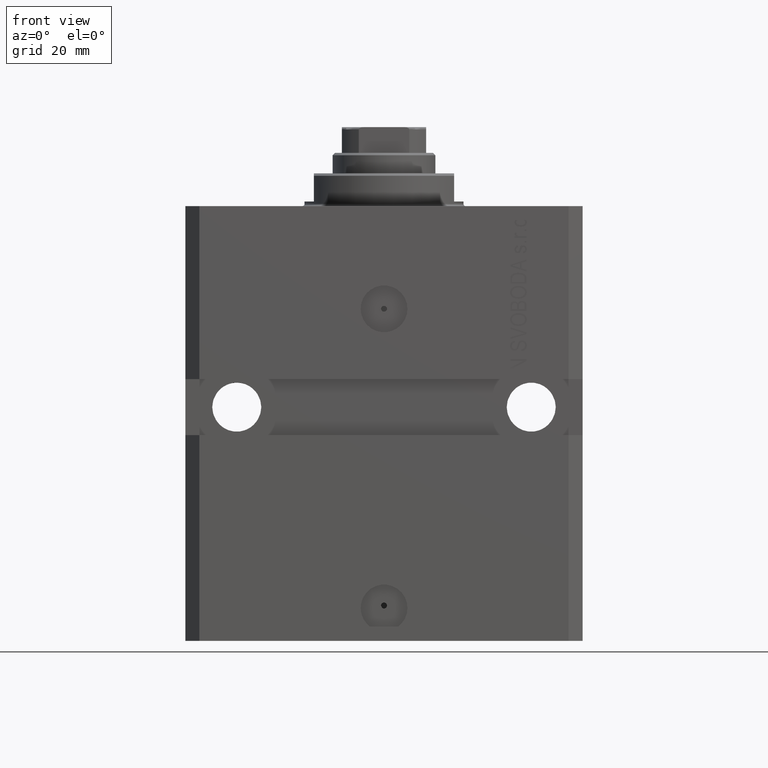
[diagram: clean part render]
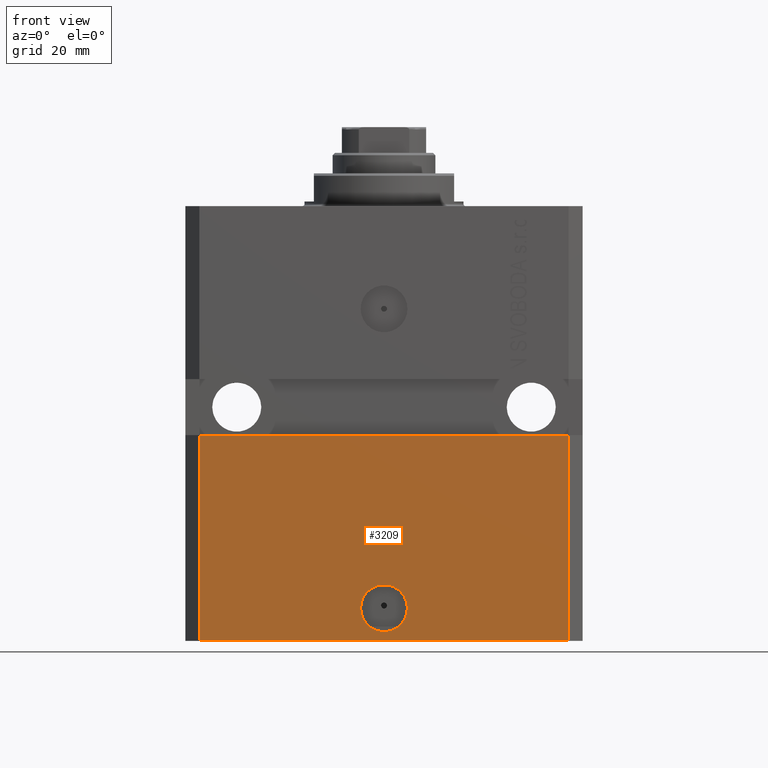
[diagram: same view with one face highlighted and labeled with its STEP entity id]
A machine part, front view. The second image highlights one B-rep face of the part: STEP entity #3209.
In plain terms, the highlighted planar face has unit normal (0, -1, 0).
Its self-contained STEP definition (entity closure, byte-faithful):
#1525 = CARTESIAN_POINT ( 'NONE',  ( 5.000000000000006217, -31.50000000000000000, -86.00000000000000000 ) ) ;
#1688 = VERTEX_POINT ( 'NONE', #1525 ) ;
#3206 = CARTESIAN_POINT ( 'NONE',  ( -5.000000000000006217, -31.50000000000000000, -86.00000000000000000 ) ) ;
#3209 = ADVANCED_FACE ( 'NONE', ( #23086, #33687 ), #38952, .T. ) ;
#5940 = DIRECTION ( 'NONE',  ( 0.000000000000000000, -1.000000000000000000, 0.000000000000000000 ) ) ;
#7814 = VECTOR ( 'NONE', #12837, 1000.000000000000000 ) ;
#8985 = CARTESIAN_POINT ( 'NONE',  ( -39.50000000000000711, -31.50000000000000000, -93.00000000000000000 ) ) ;
#9535 = CARTESIAN_POINT ( 'NONE',  ( -39.50000000000000711, -31.50000000000000000, -93.00000000000000000 ) ) ;
#9575 = VERTEX_POINT ( 'NONE', #3206 ) ;
#11585 = CARTESIAN_POINT ( 'NONE',  ( -42.50000000000000000, -31.50000000000000711, -48.99999999999999289 ) ) ;
#12465 = DIRECTION ( 'NONE',  ( 0.000000000000000000, -0.000000000000000000, -1.000000000000000000 ) ) ;
#12837 = DIRECTION ( 'NONE',  ( 0.000000000000000000, 0.000000000000000000, 1.000000000000000000 ) ) ;
#16223 = LINE ( 'NONE', #8985, #7814 ) ;
#16327 = CARTESIAN_POINT ( 'NONE',  ( -39.50000000000000711, -31.50000000000000000, -93.00000000000000000 ) ) ;
#16619 = VERTEX_POINT ( 'NONE', #43426 ) ;
#17313 = AXIS2_PLACEMENT_3D ( 'NONE', #29796, #26417, #44914 ) ;
#17454 = CARTESIAN_POINT ( 'NONE',  ( 39.50000000000000711, -31.50000000000000000, -93.00000000000000000 ) ) ;
#17523 = CARTESIAN_POINT ( 'NONE',  ( 0.000000000000000000, -31.50000000000000000, -86.00000000000000000 ) ) ;
#17578 = EDGE_CURVE ( 'NONE', #16619, #46460, #42957, .T. ) ;
#19184 = EDGE_CURVE ( 'NONE', #45576, #46460, #29907, .T. ) ;
#21100 = DIRECTION ( 'NONE',  ( 1.000000000000000000, 0.000000000000000000, 0.000000000000000000 ) ) ;
#21516 = VECTOR ( 'NONE', #26765, 1000.000000000000000 ) ;
#21611 = DIRECTION ( 'NONE',  ( 1.176083712526788232E-16, -1.000000000000000000, 0.000000000000000000 ) ) ;
#21863 = ORIENTED_EDGE ( 'NONE', *, *, #27206, .F. ) ;
#22352 = EDGE_CURVE ( 'NONE', #9575, #1688, #41616, .T. ) ;
#22610 = ORIENTED_EDGE ( 'NONE', *, *, #19184, .F. ) ;
#23086 = FACE_BOUND ( 'NONE', #28149, .T. ) ;
#24765 = ORIENTED_EDGE ( 'NONE', *, *, #44716, .F. ) ;
#25404 = DIRECTION ( 'NONE',  ( 0.000000000000000000, 0.000000000000000000, 1.000000000000000000 ) ) ;
#26417 = DIRECTION ( 'NONE',  ( 1.176083712526788232E-16, -1.000000000000000000, 0.000000000000000000 ) ) ;
#26765 = DIRECTION ( 'NONE',  ( 1.000000000000000000, 1.632680918566406300E-16, 0.000000000000000000 ) ) ;
#27206 = EDGE_CURVE ( 'NONE', #34279, #45576, #16223, .T. ) ;
#27878 = LINE ( 'NONE', #9535, #44841 ) ;
#28149 = EDGE_LOOP ( 'NONE', ( #24765, #32555 ) ) ;
#29796 = CARTESIAN_POINT ( 'NONE',  ( 0.000000000000000000, -31.50000000000000000, -86.00000000000000000 ) ) ;
#29907 = LINE ( 'NONE', #11585, #21516 ) ;
#31730 = EDGE_CURVE ( 'NONE', #34279, #16619, #27878, .T. ) ;
#32555 = ORIENTED_EDGE ( 'NONE', *, *, #22352, .F. ) ;
#33687 = FACE_OUTER_BOUND ( 'NONE', #39438, .T. ) ;
#34279 = VERTEX_POINT ( 'NONE', #38934 ) ;
#35303 = VECTOR ( 'NONE', #25404, 1000.000000000000000 ) ;
#36064 = DIRECTION ( 'NONE',  ( 1.000000000000000000, 0.000000000000000000, 0.000000000000000000 ) ) ;
#37151 = ORIENTED_EDGE ( 'NONE', *, *, #17578, .T. ) ;
#38934 = CARTESIAN_POINT ( 'NONE',  ( -39.50000000000000711, -31.50000000000000000, -93.00000000000000000 ) ) ;
#38952 = PLANE ( 'NONE',  #43055 ) ;
#39438 = EDGE_LOOP ( 'NONE', ( #22610, #21863, #42124, #37151 ) ) ;
#41616 = CIRCLE ( 'NONE', #44683, 5.000000000000006217 ) ;
#42124 = ORIENTED_EDGE ( 'NONE', *, *, #31730, .T. ) ;
#42957 = LINE ( 'NONE', #17454, #35303 ) ;
#43055 = AXIS2_PLACEMENT_3D ( 'NONE', #16327, #5940, #12465 ) ;
#43426 = CARTESIAN_POINT ( 'NONE',  ( 39.50000000000000711, -31.50000000000000000, -93.00000000000000000 ) ) ;
#43743 = CARTESIAN_POINT ( 'NONE',  ( -39.50000000000000000, -31.50000000000000711, -48.99999999999999289 ) ) ;
#44683 = AXIS2_PLACEMENT_3D ( 'NONE', #17523, #21611, #36064 ) ;
#44716 = EDGE_CURVE ( 'NONE', #1688, #9575, #46536, .T. ) ;
#44841 = VECTOR ( 'NONE', #21100, 1000.000000000000000 ) ;
#44914 = DIRECTION ( 'NONE',  ( 1.000000000000000000, 0.000000000000000000, 0.000000000000000000 ) ) ;
#45576 = VERTEX_POINT ( 'NONE', #43743 ) ;
#46460 = VERTEX_POINT ( 'NONE', #46954 ) ;
#46536 = CIRCLE ( 'NONE', #17313, 5.000000000000006217 ) ;
#46954 = CARTESIAN_POINT ( 'NONE',  ( 39.50000000000001421, -31.49999999999999289, -48.99999999999999289 ) ) ;